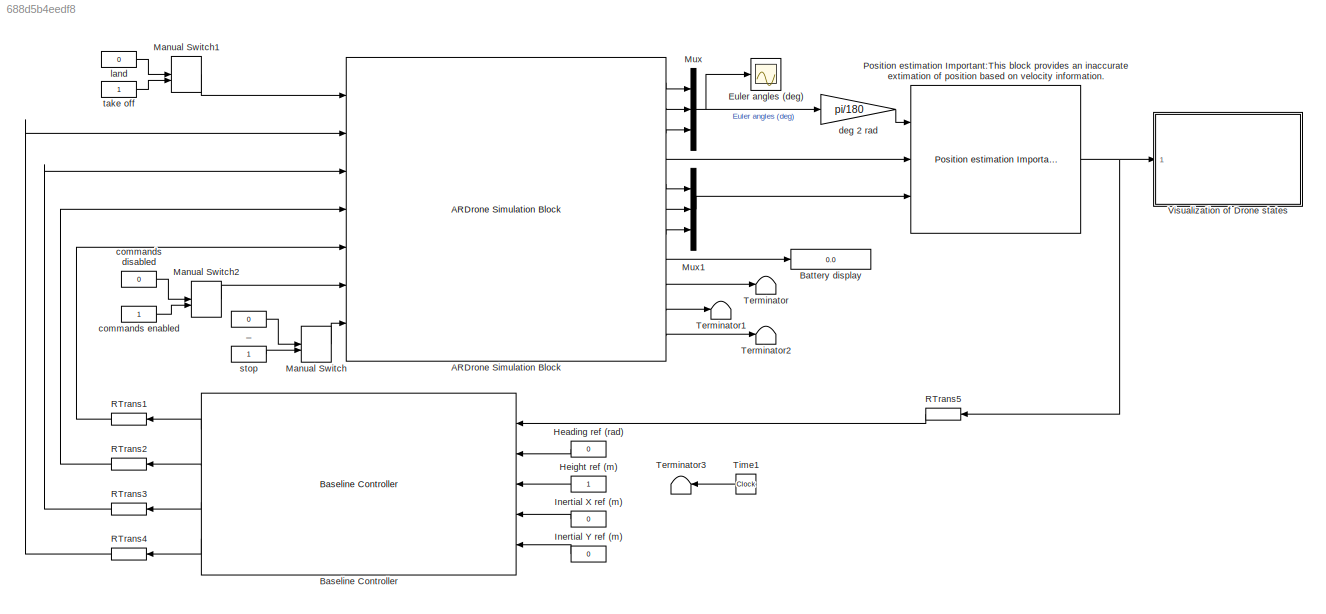
MODEL slx_688d5b4eedf8
KIND model
BLOCK [Reference] ARDrone Simulation Block  REF=ARBlocks/ARDrone Simulation Block
  Ports = [7, 11]
  SourceBlock = ARBlocks/ARDrone Simulation Block
  SourceType = SubSystem
BLOCK [Reference] Baseline Controller  REF=ARBlocks/Baseline Controller
  Ports = [5, 4]
  SourceBlock = ARBlocks/Baseline Controller
  SourceType = SubSystem
BLOCK [Display] Battery display
  Decimation = 1
  Ports = [1]
BLOCK [Scope] Euler angles (deg)
  DataFormat = StructureWithTime
  Floating = off
  MaxDataPoints = 500000
  NumInputPorts = 1
  Ports = [1]
  SampleTime = 0
  ShowLegends = off
  YMax = 22.5
  YMin = -22.5
BLOCK [Constant] Heading ref (rad)
  SampleTime = FMS.Ts
  Value = 0
BLOCK [Constant] Height ref (m)
  SampleTime = FMS.Ts
BLOCK [Constant] Inertial X ref (m)
  SampleTime = FMS.Ts
  Value = 0
BLOCK [Constant] Inertial Y ref (m)
  SampleTime = FMS.Ts
  Value = 0
BLOCK [ManualSwitch] Manual Switch
BLOCK [ManualSwitch] Manual Switch1
BLOCK [ManualSwitch] Manual Switch2
BLOCK [Mux] Mux
  DisplayOption = bar
  Inputs = 3
  Ports = [3, 1]
BLOCK [Mux] Mux1
  DisplayOption = bar
  Inputs = 3
  Ports = [3, 1]
BLOCK [Reference] Position estimation Important:This block provides an inaccurate extimation of position based on  velocity information.   REF=ARBlocks/Position estimation
Important:This block provides an 
inaccurate extimation of position 
based on  velocity information. 
  Ports = [3, 1]
  SourceBlock = ARBlocks/Position estimation\nImportant:This block provides an \ninaccurate extimation of position \nbased on  velocity information.
  SourceType = SubSystem
BLOCK [RateTransition] RTrans1
  OutPortSampleTime = simDT
BLOCK [RateTransition] RTrans2
  OutPortSampleTime = simDT
BLOCK [RateTransition] RTrans3
  OutPortSampleTime = simDT
BLOCK [RateTransition] RTrans4
  OutPortSampleTime = simDT
BLOCK [RateTransition] RTrans5
  OutPortSampleTime = FMS.Ts
BLOCK [Terminator] Terminator
BLOCK [Terminator] Terminator1
BLOCK [Terminator] Terminator2
BLOCK [Terminator] Terminator3
BLOCK [Clock] Time1
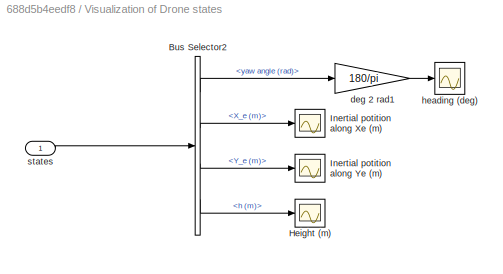
BLOCK [SubSystem] Visualization of Drone states
  FunctionWithSeparateData = off
  MaskHideContents = off
  MinAlgLoopOccurrences = off
  Opaque = off
  Ports = [1]
  PropExecContextOutsideSubsystem = off
  RTWSystemCode = Auto
  RequestExecContextInheritance = off
BLOCK [BusSelector] Visualization of Drone states/Bus Selector2
  OutputSignals = yaw angle (rad),X_e (m),Y_e (m),h (m)
  Ports = [1, 4]
BLOCK [Scope] Visualization of Drone states/Height (m)
  DataFormat = StructureWithTime
  Floating = off
  MaxDataPoints = 500000
  NumInputPorts = 1
  Ports = [1]
  SampleTime = 0
  SaveName = ScopeData5
  ShowLegends = off
  YMax = 22.5
  YMin = -22.5
BLOCK [Scope] Visualization of Drone states/Inertial potition along Xe (m)
  DataFormat = StructureWithTime
  Floating = off
  MaxDataPoints = 500000
  NumInputPorts = 1
  Ports = [1]
  SampleTime = 0
  SaveName = ScopeData3
  ShowLegends = off
  YMax = 22.5
  YMin = -22.5
BLOCK [Scope] Visualization of Drone states/Inertial potition along Ye (m)
  DataFormat = StructureWithTime
  Floating = off
  MaxDataPoints = 500000
  NumInputPorts = 1
  Ports = [1]
  SampleTime = 0
  SaveName = ScopeData4
  ShowLegends = off
  YMax = 22.5
  YMin = -22.5
BLOCK [Gain] Visualization of Drone states/deg 2 rad1
  Gain = 180/pi
  OutDataTypeStr = Inherit: Inherit via internal rule
  ParamDataTypeStr = Inherit: Inherit via internal rule
  SaturateOnIntegerOverflow = off
BLOCK [Scope] Visualization of Drone states/heading (deg)
  DataFormat = StructureWithTime
  Floating = off
  MaxDataPoints = 500000
  NumInputPorts = 1
  Ports = [1]
  SampleTime = 0
  SaveName = ScopeData2
  ShowLegends = off
  YMax = 22.5
  YMin = -22.5
BLOCK [Inport] Visualization of Drone states/states
  IconDisplay = Port number
BLOCK [Constant] _
  Value = 0
BLOCK [Constant] commands disabled
  Value = 0
BLOCK [Constant] commands enabled
BLOCK [Gain] deg 2 rad
  Gain = pi/180
  OutDataTypeStr = Inherit: Inherit via internal rule
  ParamDataTypeStr = Inherit: Inherit via internal rule
  SaturateOnIntegerOverflow = off
BLOCK [Constant] land
  Value = 0
BLOCK [Constant] stop
BLOCK [Constant] take off
LINE ARDrone Simulation Block:1 -> Mux:1
LINE ARDrone Simulation Block:10 -> Terminator1:1
LINE ARDrone Simulation Block:11 -> Terminator2:1
LINE ARDrone Simulation Block:2 -> Mux:2
LINE ARDrone Simulation Block:3 -> Mux:3
LINE ARDrone Simulation Block:4 -> Position estimation Important:This block provides an inaccurate extimation of position based on  velocity information. :2
LINE ARDrone Simulation Block:5 -> Mux1:1
LINE ARDrone Simulation Block:6 -> Mux1:2
LINE ARDrone Simulation Block:7 -> Mux1:3
LINE ARDrone Simulation Block:8 -> Battery display:1
LINE ARDrone Simulation Block:9 -> Terminator:1
LINE Baseline Controller:1 -> RTrans1:1
LINE Baseline Controller:2 -> RTrans2:1
LINE Baseline Controller:3 -> RTrans3:1
LINE Baseline Controller:4 -> RTrans4:1
LINE Heading ref (rad):1 -> Baseline Controller:2
LINE Height ref (m):1 -> Baseline Controller:3
LINE Inertial X ref (m):1 -> Baseline Controller:4
LINE Inertial Y ref (m):1 -> Baseline Controller:5
LINE Manual Switch1:1 -> ARDrone Simulation Block:1
LINE Manual Switch2:1 -> ARDrone Simulation Block:6
LINE Manual Switch:1 -> ARDrone Simulation Block:7
LINE Mux1:1 -> Position estimation Important:This block provides an inaccurate extimation of position based on  velocity information. :3
NET Mux:1 -> Euler angles (deg):1, deg 2 rad:1
NET Position estimation Important:This block provides an inaccurate extimation of position based on  velocity information. :1 -> RTrans5:1, Visualization of Drone states:1
LINE RTrans1:1 -> ARDrone Simulation Block:5
LINE RTrans2:1 -> ARDrone Simulation Block:4
LINE RTrans3:1 -> ARDrone Simulation Block:3
LINE RTrans4:1 -> ARDrone Simulation Block:2
LINE RTrans5:1 -> Baseline Controller:1
LINE Time1:1 -> Terminator3:1
LINE Visualization of Drone states/Bus Selector2:1 -> Visualization of Drone states/deg 2 rad1:1
LINE Visualization of Drone states/Bus Selector2:2 -> Visualization of Drone states/Inertial potition along Xe (m):1
LINE Visualization of Drone states/Bus Selector2:3 -> Visualization of Drone states/Inertial potition along Ye (m):1
LINE Visualization of Drone states/Bus Selector2:4 -> Visualization of Drone states/Height (m):1
LINE Visualization of Drone states/deg 2 rad1:1 -> Visualization of Drone states/heading (deg):1
LINE Visualization of Drone states/states:1 -> Visualization of Drone states/Bus Selector2:1
LINE _:1 -> Manual Switch:1
LINE commands disabled:1 -> Manual Switch2:1
LINE commands enabled:1 -> Manual Switch2:2
LINE deg 2 rad:1 -> Position estimation Important:This block provides an inaccurate extimation of position based on  velocity information. :1
LINE land:1 -> Manual Switch1:1
LINE stop:1 -> Manual Switch:2
LINE take off:1 -> Manual Switch1:2
note: NET lines group one-source signal fan-out (src -> all destinations, sorted); 1:1 wires keep LINE
